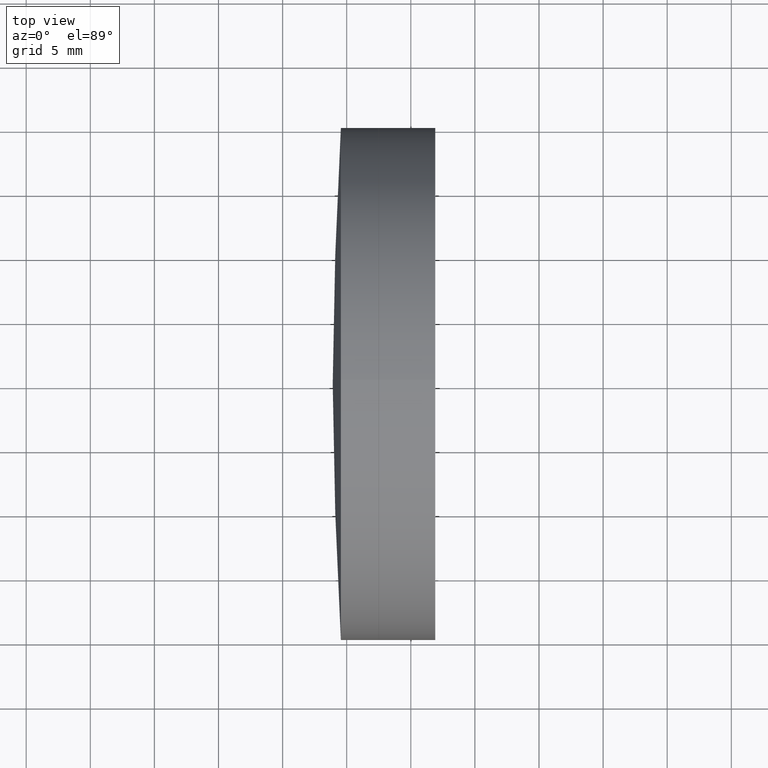
[diagram: clean part render]
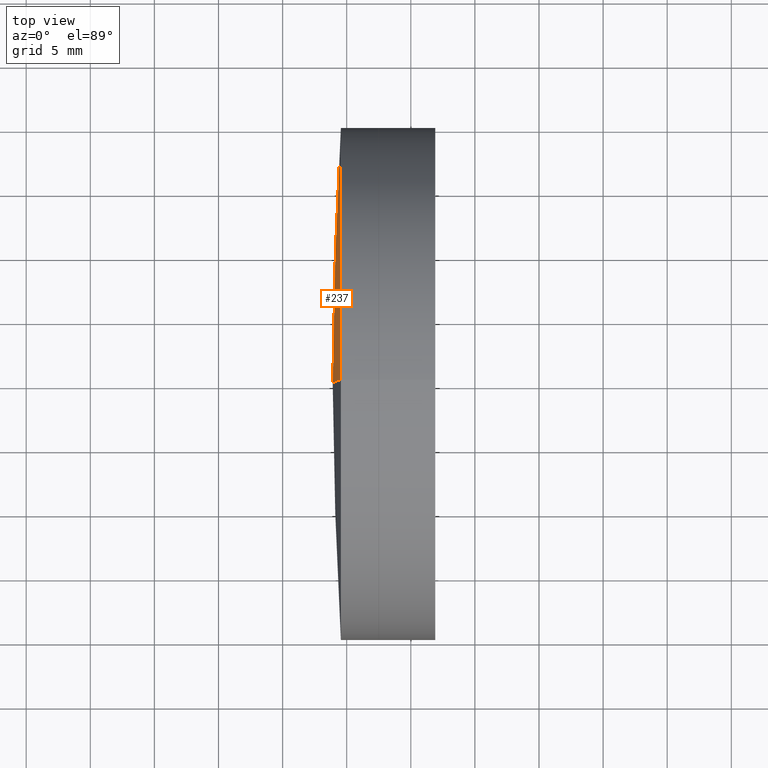
[diagram: same view with one face highlighted and labeled with its STEP entity id]
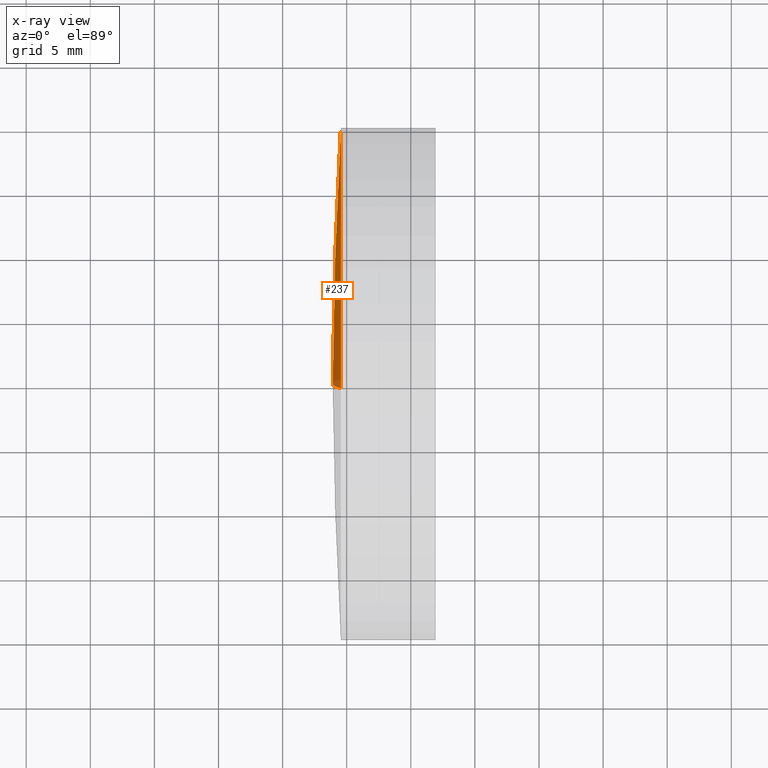
[diagram: x-ray of the same camera — body ghosted, the highlighted face saturated]
A machine part, top view. The second image highlights one B-rep face of the part: STEP entity #237.
The next image is the same camera in x-ray: the body ghosted, the highlighted face saturated — about 4% of this face is hidden behind the body in this view.
In plain terms, the highlighted spherical surface has radius 315.18 mm.
Its self-contained STEP definition (entity closure, byte-faithful):
#22 = ORIENTED_EDGE ( 'NONE', *, *, #88, .T. ) ;
#25 = AXIS2_PLACEMENT_3D ( 'NONE', #239, #57, #81 ) ;
#28 = EDGE_CURVE ( 'NONE', #226, #96, #271, .T. ) ;
#38 = ORIENTED_EDGE ( 'NONE', *, *, #94, .F. ) ;
#57 = DIRECTION ( 'NONE',  ( -1.000000000000000000, -0.0000000000000000000, -0.0000000000000000000 ) ) ;
#81 = DIRECTION ( 'NONE',  ( 0.0000000000000000000, 0.0000000000000000000, 1.000000000000000000 ) ) ;
#88 = EDGE_CURVE ( 'NONE', #96, #153, #171, .T. ) ;
#89 = DIRECTION ( 'NONE',  ( 0.0000000000000000000, 0.0000000000000000000, -1.000000000000000000 ) ) ;
#94 = EDGE_CURVE ( 'NONE', #226, #153, #123, .T. ) ;
#96 = VERTEX_POINT ( 'NONE', #307 ) ;
#105 = EDGE_LOOP ( 'NONE', ( #128, #22, #38 ) ) ;
#123 = CIRCLE ( 'NONE', #299, 315.1800000000000600 ) ;
#128 = ORIENTED_EDGE ( 'NONE', *, *, #28, .T. ) ;
#153 = VERTEX_POINT ( 'NONE', #209 ) ;
#171 = CIRCLE ( 'NONE', #252, 315.1800000000000600 ) ;
#187 = DIRECTION ( 'NONE',  ( -0.0000000000000000000, 1.000000000000000000, 1.224646799147353200E-016 ) ) ;
#200 = FACE_OUTER_BOUND ( 'NONE', #105, .T. ) ;
#209 = CARTESIAN_POINT ( 'NONE',  ( 653.9090846041468700, 0.0000000000000000000, -1.165465373686866100E-013 ) ) ;
#216 = CARTESIAN_POINT ( 'NONE',  ( 969.0890846041469300, 0.0000000000000000000, -1.358457462764497500E-013 ) ) ;
#222 = AXIS2_PLACEMENT_3D ( 'NONE', #257, #262, #311 ) ;
#226 = VERTEX_POINT ( 'NONE', #308 ) ;
#237 = ADVANCED_FACE ( 'NONE', ( #200 ), #319, .T. ) ;
#239 = CARTESIAN_POINT ( 'NONE',  ( 654.5442827078192100, 0.0000000000000000000, 0.0000000000000000000 ) ) ;
#243 = DIRECTION ( 'NONE',  ( 0.0000000000000000000, -1.000000000000000000, 0.0000000000000000000 ) ) ;
#252 = AXIS2_PLACEMENT_3D ( 'NONE', #264, #187, #256 ) ;
#256 = DIRECTION ( 'NONE',  ( 0.0000000000000000000, -1.224646799147353200E-016, 1.000000000000000000 ) ) ;
#257 = CARTESIAN_POINT ( 'NONE',  ( 969.0890846041469300, 0.0000000000000000000, -1.358457462764497500E-013 ) ) ;
#262 = DIRECTION ( 'NONE',  ( 0.0000000000000000000, 1.000000000000000000, 0.0000000000000000000 ) ) ;
#264 = CARTESIAN_POINT ( 'NONE',  ( 969.0890846041469300, 0.0000000000000000000, -1.358457462764497500E-013 ) ) ;
#271 = CIRCLE ( 'NONE', #25, 19.99999999999986100 ) ;
#299 = AXIS2_PLACEMENT_3D ( 'NONE', #216, #243, #89 ) ;
#307 = CARTESIAN_POINT ( 'NONE',  ( 654.5442827078192100, 2.449293598294685600E-015, -19.99999999999996400 ) ) ;
#308 = CARTESIAN_POINT ( 'NONE',  ( 654.5442827078192100, 0.0000000000000000000, 19.99999999999982900 ) ) ;
#311 = DIRECTION ( 'NONE',  ( 0.0000000000000000000, 0.0000000000000000000, 1.000000000000000000 ) ) ;
#319 = SPHERICAL_SURFACE ( 'NONE', #222, 315.1800000000000600 ) ;